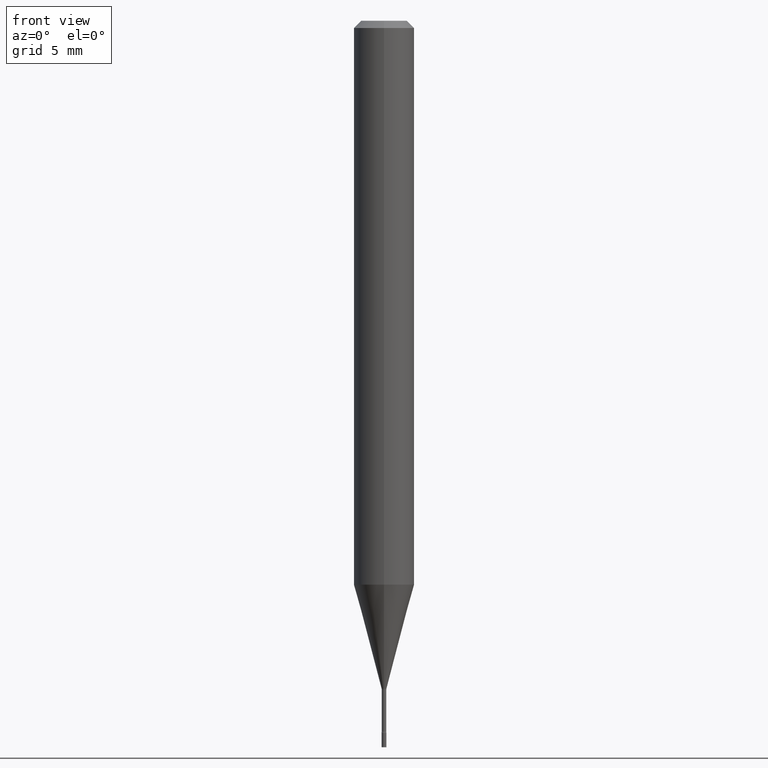
[diagram: clean part render]
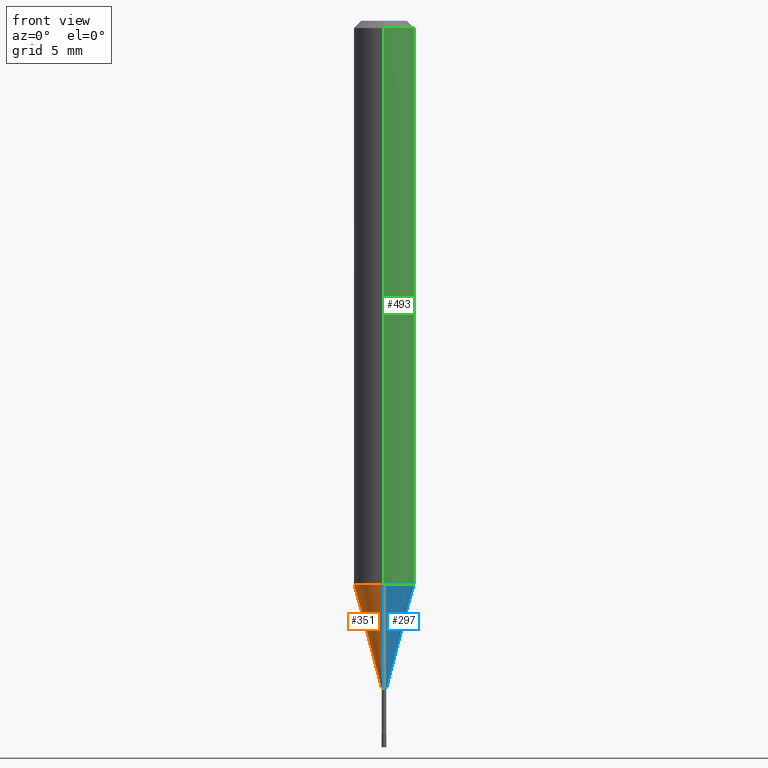
[diagram: same view with three faces highlighted in distinct colors, each labeled with its STEP entity id]
A machine part, front view with three faces highlighted in distinct colors.
Their STEP definitions:

[orange] entity #351 — the highlighted conical surface has half-angle 15 deg.
#4 = VERTEX_POINT ( 'NONE', #19 ) ;
#11 = CARTESIAN_POINT ( 'NONE',  ( 2.844916092132503217E-29, -4.068399698648086919E-15, -1.164287463322519312 ) ) ;
#19 = CARTESIAN_POINT ( 'NONE',  ( -3.638900483453789669E-17, -0.005211112605668734299, -1.378092501787273605 ) ) ;
#49 = DIRECTION ( 'NONE',  ( -6.982962677686266711E-15, -1.000000000000000000, 0.000000000000000000 ) ) ;
#73 = ORIENTED_EDGE ( 'NONE', *, *, #250, .T. ) ;
#80 = ORIENTED_EDGE ( 'NONE', *, *, #290, .F. ) ;
#94 = DIRECTION ( 'NONE',  ( -2.443482543403829974E-29, 3.494325780197033093E-15, 1.000000000000000000 ) ) ;
#104 = DIRECTION ( 'NONE',  ( -6.982962677686266711E-15, -1.000000000000000000, 0.000000000000000000 ) ) ;
#107 = CARTESIAN_POINT ( 'NONE',  ( -4.364351673553632704E-16, -0.06250000000000409395, -1.164287463322519089 ) ) ;
#108 = AXIS2_PLACEMENT_3D ( 'NONE', #471, #161, #104 ) ;
#110 = ORIENTED_EDGE ( 'NONE', *, *, #392, .F. ) ;
#151 = CARTESIAN_POINT ( 'NONE',  ( -3.638900483453789669E-17, -0.005211112605668734299, -1.378092501787273605 ) ) ;
#161 = DIRECTION ( 'NONE',  ( -2.443482543403829974E-29, 3.494325780197033093E-15, 1.000000000000000000 ) ) ;
#189 = EDGE_CURVE ( 'NONE', #4, #190, #269, .T. ) ;
#190 = VERTEX_POINT ( 'NONE', #107 ) ;
#200 = DIRECTION ( 'NONE',  ( -1.807323732225325801E-15, -0.2588190451025175753, 0.9659258262890690894 ) ) ;
#217 = FACE_OUTER_BOUND ( 'NONE', #278, .T. ) ;
#232 = CIRCLE ( 'NONE', #379, 0.06250000000000000000 ) ;
#249 = VECTOR ( 'NONE', #444, 39.37007874015748143 ) ;
#250 = EDGE_CURVE ( 'NONE', #484, #4, #480, .T. ) ;
#261 = CARTESIAN_POINT ( 'NONE',  ( 3.367344971312914861E-29, -4.815504156491496449E-15, -1.378092501787273605 ) ) ;
#269 = LINE ( 'NONE', #151, #472 ) ;
#277 = CARTESIAN_POINT ( 'NONE',  ( 3.702718207185751166E-17, 0.005211112605659102247, -1.378092501787273605 ) ) ;
#278 = EDGE_LOOP ( 'NONE', ( #80, #73, #505, #110 ) ) ;
#290 = EDGE_CURVE ( 'NONE', #484, #406, #352, .T. ) ;
#329 = DIRECTION ( 'NONE',  ( -6.982962677686265922E-15, -1.000000000000000000, 4.370956789862821150E-15 ) ) ;
#351 = ADVANCED_FACE ( 'NONE', ( #217 ), #415, .T. ) ;
#352 = LINE ( 'NONE', #277, #249 ) ;
#353 = AXIS2_PLACEMENT_3D ( 'NONE', #261, #94, #49 ) ;
#379 = AXIS2_PLACEMENT_3D ( 'NONE', #11, #499, #329 ) ;
#389 = CARTESIAN_POINT ( 'NONE',  ( 2.405581959609744668E-16, 0.005211112605659102247, -1.378092501787273605 ) ) ;
#392 = EDGE_CURVE ( 'NONE', #406, #190, #232, .T. ) ;
#406 = VERTEX_POINT ( 'NONE', #461 ) ;
#415 = CONICAL_SURFACE ( 'NONE', #353, 0.005211112605663917839, 0.2617993877991496299 ) ;
#444 = DIRECTION ( 'NONE',  ( 1.839019923739595977E-15, 0.2588190451025243477, 0.9659258262890673130 ) ) ;
#461 = CARTESIAN_POINT ( 'NONE',  ( 4.440892098500909166E-16, 0.06249999999999592687, -1.164287463322519756 ) ) ;
#471 = CARTESIAN_POINT ( 'NONE',  ( 3.367344971312914861E-29, -4.815504156491496449E-15, -1.378092501787273605 ) ) ;
#472 = VECTOR ( 'NONE', #200, 39.37007874015748854 ) ;
#480 = CIRCLE ( 'NONE', #108, 0.005211112605663917839 ) ;
#484 = VERTEX_POINT ( 'NONE', #389 ) ;
#499 = DIRECTION ( 'NONE',  ( -2.443482543403829974E-29, 3.494325780197033093E-15, 1.000000000000000000 ) ) ;
#505 = ORIENTED_EDGE ( 'NONE', *, *, #189, .T. ) ;

[blue] entity #297 — the highlighted conical surface has half-angle 15 deg.
#4 = VERTEX_POINT ( 'NONE', #19 ) ;
#5 = AXIS2_PLACEMENT_3D ( 'NONE', #143, #306, #470 ) ;
#14 = AXIS2_PLACEMENT_3D ( 'NONE', #513, #149, #476 ) ;
#19 = CARTESIAN_POINT ( 'NONE',  ( -3.638900483453789669E-17, -0.005211112605668734299, -1.378092501787273605 ) ) ;
#23 = AXIS2_PLACEMENT_3D ( 'NONE', #167, #298, #372 ) ;
#95 = CONICAL_SURFACE ( 'NONE', #14, 0.005211112605663917839, 0.2617993877991496299 ) ;
#107 = CARTESIAN_POINT ( 'NONE',  ( -4.364351673553632704E-16, -0.06250000000000409395, -1.164287463322519089 ) ) ;
#131 = EDGE_CURVE ( 'NONE', #4, #484, #367, .T. ) ;
#143 = CARTESIAN_POINT ( 'NONE',  ( 3.367344971312914861E-29, -4.815504156491496449E-15, -1.378092501787273605 ) ) ;
#149 = DIRECTION ( 'NONE',  ( -2.443482543403829974E-29, 3.494325780197033093E-15, 1.000000000000000000 ) ) ;
#151 = CARTESIAN_POINT ( 'NONE',  ( -3.638900483453789669E-17, -0.005211112605668734299, -1.378092501787273605 ) ) ;
#154 = EDGE_LOOP ( 'NONE', ( #316, #497, #196, #373 ) ) ;
#167 = CARTESIAN_POINT ( 'NONE',  ( 2.844916092132503217E-29, -4.068399698648086919E-15, -1.164287463322519312 ) ) ;
#189 = EDGE_CURVE ( 'NONE', #4, #190, #269, .T. ) ;
#190 = VERTEX_POINT ( 'NONE', #107 ) ;
#196 = ORIENTED_EDGE ( 'NONE', *, *, #441, .F. ) ;
#200 = DIRECTION ( 'NONE',  ( -1.807323732225325801E-15, -0.2588190451025175753, 0.9659258262890690894 ) ) ;
#233 = CIRCLE ( 'NONE', #23, 0.06250000000000000000 ) ;
#243 = FACE_OUTER_BOUND ( 'NONE', #154, .T. ) ;
#249 = VECTOR ( 'NONE', #444, 39.37007874015748143 ) ;
#269 = LINE ( 'NONE', #151, #472 ) ;
#277 = CARTESIAN_POINT ( 'NONE',  ( 3.702718207185751166E-17, 0.005211112605659102247, -1.378092501787273605 ) ) ;
#290 = EDGE_CURVE ( 'NONE', #484, #406, #352, .T. ) ;
#297 = ADVANCED_FACE ( 'NONE', ( #243 ), #95, .T. ) ;
#298 = DIRECTION ( 'NONE',  ( -2.443482543403829974E-29, 3.494325780197033093E-15, 1.000000000000000000 ) ) ;
#306 = DIRECTION ( 'NONE',  ( -2.443482543403829974E-29, 3.494325780197033093E-15, 1.000000000000000000 ) ) ;
#316 = ORIENTED_EDGE ( 'NONE', *, *, #131, .T. ) ;
#352 = LINE ( 'NONE', #277, #249 ) ;
#367 = CIRCLE ( 'NONE', #5, 0.005211112605663917839 ) ;
#372 = DIRECTION ( 'NONE',  ( -6.982962677686265922E-15, -1.000000000000000000, 4.370956789862821150E-15 ) ) ;
#373 = ORIENTED_EDGE ( 'NONE', *, *, #189, .F. ) ;
#389 = CARTESIAN_POINT ( 'NONE',  ( 2.405581959609744668E-16, 0.005211112605659102247, -1.378092501787273605 ) ) ;
#406 = VERTEX_POINT ( 'NONE', #461 ) ;
#441 = EDGE_CURVE ( 'NONE', #190, #406, #233, .T. ) ;
#444 = DIRECTION ( 'NONE',  ( 1.839019923739595977E-15, 0.2588190451025243477, 0.9659258262890673130 ) ) ;
#461 = CARTESIAN_POINT ( 'NONE',  ( 4.440892098500909166E-16, 0.06249999999999592687, -1.164287463322519756 ) ) ;
#470 = DIRECTION ( 'NONE',  ( -6.982962677686266711E-15, -1.000000000000000000, 0.000000000000000000 ) ) ;
#472 = VECTOR ( 'NONE', #200, 39.37007874015748854 ) ;
#476 = DIRECTION ( 'NONE',  ( -6.982962677686266711E-15, -1.000000000000000000, 0.000000000000000000 ) ) ;
#484 = VERTEX_POINT ( 'NONE', #389 ) ;
#497 = ORIENTED_EDGE ( 'NONE', *, *, #290, .T. ) ;
#513 = CARTESIAN_POINT ( 'NONE',  ( 3.367344971312914861E-29, -4.815504156491496449E-15, -1.378092501787273605 ) ) ;

[green] entity #493 — the highlighted cylindrical surface (edge-blend (fillet) strip) has radius 1.5875 mm, axis along (-0, 0, 1).
#7 = ORIENTED_EDGE ( 'NONE', *, *, #445, .F. ) ;
#18 = CARTESIAN_POINT ( 'NONE',  ( -4.364351673553916201E-16, -0.06250000000000000000, 2.183953612623145683E-16 ) ) ;
#23 = AXIS2_PLACEMENT_3D ( 'NONE', #167, #298, #372 ) ;
#30 = ORIENTED_EDGE ( 'NONE', *, *, #479, .F. ) ;
#38 = CARTESIAN_POINT ( 'NONE',  ( 4.440892098500912124E-16, 0.06249999999999995143, -0.01500000000000024751 ) ) ;
#66 = DIRECTION ( 'NONE',  ( -6.982962677686265922E-15, -1.000000000000000000, 3.494325780197033093E-15 ) ) ;
#97 = DIRECTION ( 'NONE',  ( -2.443482543403829974E-29, 3.494325780197033093E-15, 1.000000000000000000 ) ) ;
#107 = CARTESIAN_POINT ( 'NONE',  ( -4.364351673553632704E-16, -0.06250000000000409395, -1.164287463322519089 ) ) ;
#158 = VERTEX_POINT ( 'NONE', #282 ) ;
#167 = CARTESIAN_POINT ( 'NONE',  ( 2.844916092132503217E-29, -4.068399698648086919E-15, -1.164287463322519312 ) ) ;
#187 = FACE_OUTER_BOUND ( 'NONE', #416, .T. ) ;
#190 = VERTEX_POINT ( 'NONE', #107 ) ;
#199 = VERTEX_POINT ( 'NONE', #38 ) ;
#212 = VECTOR ( 'NONE', #426, 39.37007874015748143 ) ;
#231 = CARTESIAN_POINT ( 'NONE',  ( 0.000000000000000000, 0.000000000000000000, 0.000000000000000000 ) ) ;
#233 = CIRCLE ( 'NONE', #23, 0.06250000000000000000 ) ;
#251 = ORIENTED_EDGE ( 'NONE', *, *, #441, .T. ) ;
#271 = ORIENTED_EDGE ( 'NONE', *, *, #338, .T. ) ;
#282 = CARTESIAN_POINT ( 'NONE',  ( -4.364351673553912750E-16, -0.06250000000000005551, -0.01499999999999981209 ) ) ;
#289 = CARTESIAN_POINT ( 'NONE',  ( 4.440892098500625669E-16, 0.06250000000000000000, -2.183953612623145683E-16 ) ) ;
#298 = DIRECTION ( 'NONE',  ( -2.443482543403829974E-29, 3.494325780197033093E-15, 1.000000000000000000 ) ) ;
#318 = AXIS2_PLACEMENT_3D ( 'NONE', #331, #420, #422 ) ;
#331 = CARTESIAN_POINT ( 'NONE',  ( 3.665223815105752265E-31, -5.241488670295561103E-17, -0.01500000000000003067 ) ) ;
#338 = EDGE_CURVE ( 'NONE', #406, #199, #485, .T. ) ;
#339 = DIRECTION ( 'NONE',  ( -2.443482543403829974E-29, 3.494325780197033487E-15, 1.000000000000000000 ) ) ;
#354 = CYLINDRICAL_SURFACE ( 'NONE', #474, 0.06250000000000000000 ) ;
#372 = DIRECTION ( 'NONE',  ( -6.982962677686265922E-15, -1.000000000000000000, 4.370956789862821150E-15 ) ) ;
#380 = LINE ( 'NONE', #18, #481 ) ;
#406 = VERTEX_POINT ( 'NONE', #461 ) ;
#416 = EDGE_LOOP ( 'NONE', ( #251, #271, #7, #30 ) ) ;
#420 = DIRECTION ( 'NONE',  ( -2.443482543403829974E-29, 3.494325780197033093E-15, 1.000000000000000000 ) ) ;
#422 = DIRECTION ( 'NONE',  ( -6.982962677686265922E-15, -1.000000000000000000, 3.483106191921935554E-15 ) ) ;
#426 = DIRECTION ( 'NONE',  ( -2.443482543403829974E-29, 3.494325780197033487E-15, 1.000000000000000000 ) ) ;
#441 = EDGE_CURVE ( 'NONE', #190, #406, #233, .T. ) ;
#445 = EDGE_CURVE ( 'NONE', #158, #199, #506, .T. ) ;
#461 = CARTESIAN_POINT ( 'NONE',  ( 4.440892098500909166E-16, 0.06249999999999592687, -1.164287463322519756 ) ) ;
#474 = AXIS2_PLACEMENT_3D ( 'NONE', #231, #97, #66 ) ;
#479 = EDGE_CURVE ( 'NONE', #190, #158, #380, .T. ) ;
#481 = VECTOR ( 'NONE', #339, 39.37007874015748143 ) ;
#485 = LINE ( 'NONE', #289, #212 ) ;
#493 = ADVANCED_FACE ( 'NONE', ( #187 ), #354, .T. ) ;
#506 = CIRCLE ( 'NONE', #318, 0.06250000000000000000 ) ;